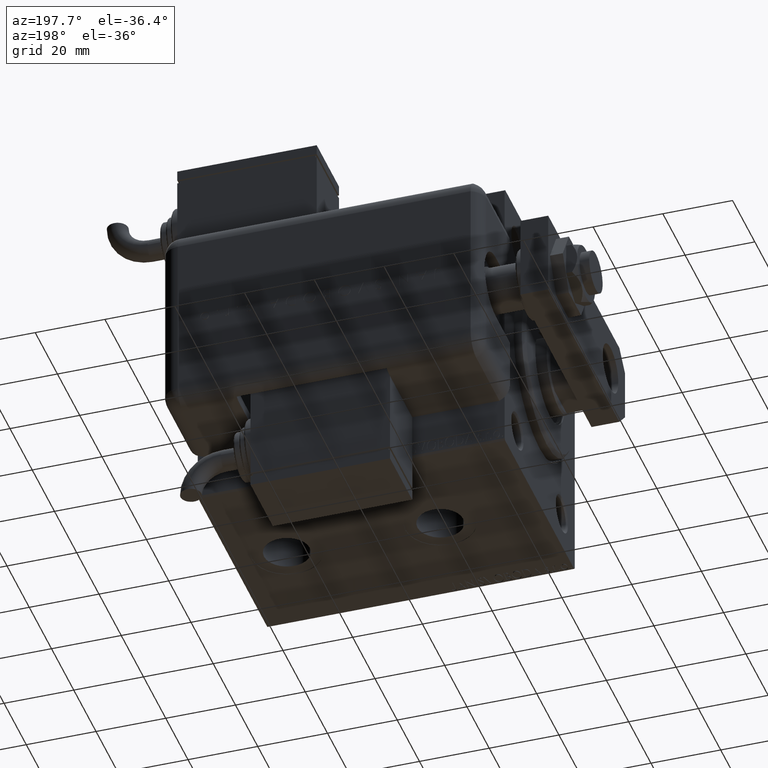
[diagram: clean part render]
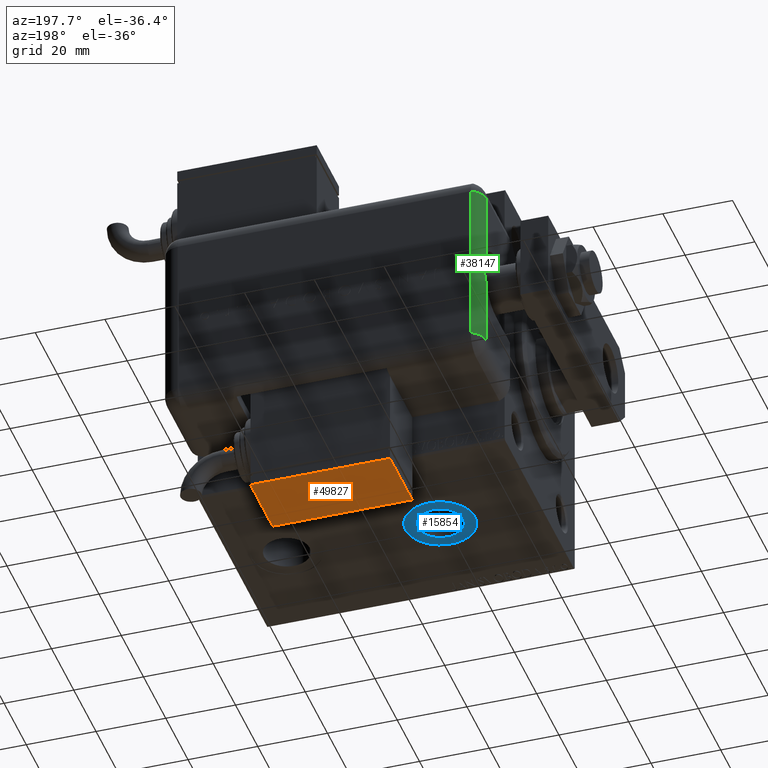
[diagram: same view with three faces highlighted in distinct colors, each labeled with its STEP entity id]
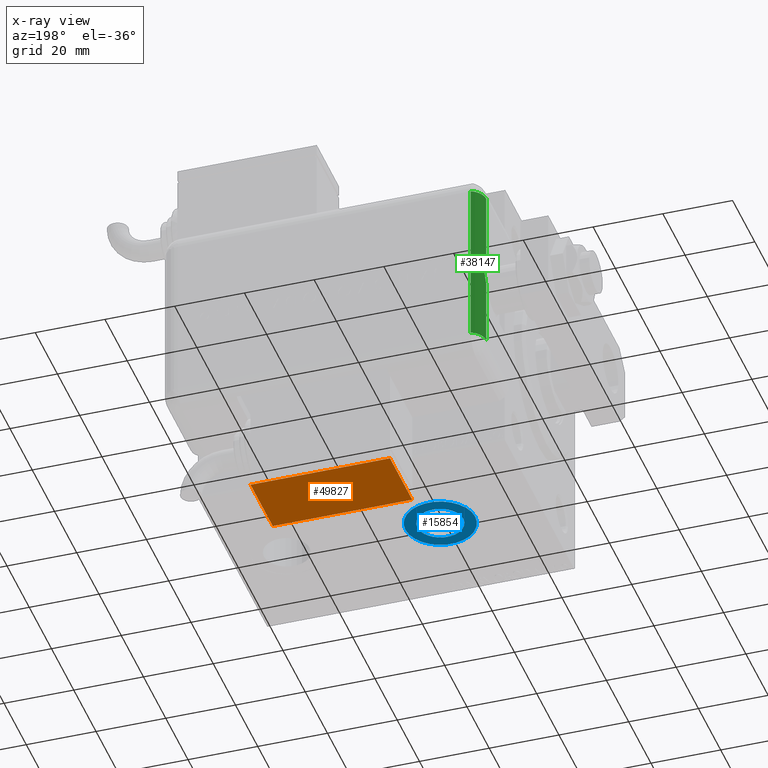
[diagram: x-ray of the same camera — body ghosted, the three highlighted faces saturated]
A machine part, auxiliary view with three faces highlighted in distinct colors.
The next image is the same camera in x-ray (body ghosted, the three faces saturated) — at least one of them is partly hidden behind the body in this view.
Their STEP definitions:

[orange] entity #49827 — the highlighted planar face has unit normal (0, 0, 1).
#3341 = FACE_OUTER_BOUND ( 'NONE', #58040, .T. ) ;
#3655 = PLANE ( 'NONE',  #5548 ) ;
#4692 = CARTESIAN_POINT ( 'NONE',  ( -19.99999999999994316, -17.49999999999996092, 10.00000000000000000 ) ) ;
#4709 = DIRECTION ( 'NONE',  ( 1.000000000000000000, 0.000000000000000000, 0.000000000000000000 ) ) ;
#4745 = CARTESIAN_POINT ( 'NONE',  ( 20.00000000000005329, -17.49999999999996092, -9.999999999999998224 ) ) ;
#4748 = VERTEX_POINT ( 'NONE', #4692 ) ;
#5548 = AXIS2_PLACEMENT_3D ( 'NONE', #55443, #18524, #8921 ) ;
#7236 = VECTOR ( 'NONE', #23961, 1000.000000000000000 ) ;
#7572 = ORIENTED_EDGE ( 'NONE', *, *, #29530, .T. ) ;
#8116 = CARTESIAN_POINT ( 'NONE',  ( 20.00000000000005329, -17.49999999999996092, 10.00000000000000000 ) ) ;
#8921 = DIRECTION ( 'NONE',  ( 0.000000000000000000, -0.000000000000000000, 1.000000000000000000 ) ) ;
#9224 = LINE ( 'NONE', #28140, #27542 ) ;
#11014 = ORIENTED_EDGE ( 'NONE', *, *, #39621, .T. ) ;
#11792 = VECTOR ( 'NONE', #58416, 1000.000000000000000 ) ;
#18524 = DIRECTION ( 'NONE',  ( 0.000000000000000000, 1.000000000000000000, 0.000000000000000000 ) ) ;
#21261 = CARTESIAN_POINT ( 'NONE',  ( 20.00000000000005329, -17.49999999999996092, -9.999999999999998224 ) ) ;
#21285 = VERTEX_POINT ( 'NONE', #8116 ) ;
#23926 = EDGE_CURVE ( 'NONE', #4748, #28014, #9224, .T. ) ;
#23961 = DIRECTION ( 'NONE',  ( 0.000000000000000000, 0.000000000000000000, 1.000000000000000000 ) ) ;
#27542 = VECTOR ( 'NONE', #51711, 1000.000000000000000 ) ;
#28014 = VERTEX_POINT ( 'NONE', #43644 ) ;
#28140 = CARTESIAN_POINT ( 'NONE',  ( -19.99999999999994316, -17.49999999999996092, -9.999999999999998224 ) ) ;
#29530 = EDGE_CURVE ( 'NONE', #21285, #4748, #49094, .T. ) ;
#32360 = LINE ( 'NONE', #4745, #7236 ) ;
#36106 = ORIENTED_EDGE ( 'NONE', *, *, #23926, .T. ) ;
#39621 = EDGE_CURVE ( 'NONE', #51640, #21285, #32360, .T. ) ;
#40092 = CARTESIAN_POINT ( 'NONE',  ( -19.99999999999994316, -17.49999999999996092, 10.00000000000000000 ) ) ;
#43644 = CARTESIAN_POINT ( 'NONE',  ( -19.99999999999994316, -17.49999999999996092, -9.999999999999998224 ) ) ;
#49094 = LINE ( 'NONE', #40092, #11792 ) ;
#49827 = ADVANCED_FACE ( 'NONE', ( #3341 ), #3655, .F. ) ;
#50925 = LINE ( 'NONE', #56209, #56737 ) ;
#51640 = VERTEX_POINT ( 'NONE', #21261 ) ;
#51711 = DIRECTION ( 'NONE',  ( -0.000000000000000000, -0.000000000000000000, -1.000000000000000000 ) ) ;
#55406 = EDGE_CURVE ( 'NONE', #28014, #51640, #50925, .T. ) ;
#55443 = CARTESIAN_POINT ( 'NONE',  ( 0.000000000000000000, -17.49999999999996092, 0.000000000000000000 ) ) ;
#56209 = CARTESIAN_POINT ( 'NONE',  ( -19.99999999999994316, -17.49999999999996092, -9.999999999999998224 ) ) ;
#56668 = ORIENTED_EDGE ( 'NONE', *, *, #55406, .T. ) ;
#56737 = VECTOR ( 'NONE', #4709, 1000.000000000000000 ) ;
#58040 = EDGE_LOOP ( 'NONE', ( #11014, #7572, #36106, #56668 ) ) ;
#58416 = DIRECTION ( 'NONE',  ( -1.000000000000000000, -0.000000000000000000, -0.000000000000000000 ) ) ;

[blue] entity #15854 — the highlighted planar face has unit normal (0, 0, -1).
#35 = AXIS2_PLACEMENT_3D ( 'NONE', #48774, #39471, #34820 ) ;
#1453 = EDGE_CURVE ( 'NONE', #37734, #5803, #21071, .T. ) ;
#3684 = FACE_BOUND ( 'NONE', #47156, .T. ) ;
#3990 = CARTESIAN_POINT ( 'NONE',  ( 0.000000000000000000, 0.000000000000000000, -42.40000000000000568 ) ) ;
#5165 = DIRECTION ( 'NONE',  ( 0.000000000000000000, 0.000000000000000000, -1.000000000000000000 ) ) ;
#5803 = VERTEX_POINT ( 'NONE', #47854 ) ;
#11199 = EDGE_LOOP ( 'NONE', ( #35149, #16722 ) ) ;
#14355 = DIRECTION ( 'NONE',  ( -1.000000000000000000, 0.000000000000000000, 0.000000000000000000 ) ) ;
#15107 = ORIENTED_EDGE ( 'NONE', *, *, #32678, .F. ) ;
#15854 = ADVANCED_FACE ( 'NONE', ( #3684, #36852 ), #46474, .T. ) ;
#16722 = ORIENTED_EDGE ( 'NONE', *, *, #51549, .T. ) ;
#18715 = EDGE_CURVE ( 'NONE', #41687, #36701, #26540, .T. ) ;
#19459 = DIRECTION ( 'NONE',  ( -1.000000000000000000, 0.000000000000000000, -0.000000000000000000 ) ) ;
#21071 = CIRCLE ( 'NONE', #59744, 6.580000000000002736 ) ;
#22648 = DIRECTION ( 'NONE',  ( 0.000000000000000000, 0.000000000000000000, -1.000000000000000000 ) ) ;
#22801 = CIRCLE ( 'NONE', #35, 6.580000000000002736 ) ;
#22852 = CIRCLE ( 'NONE', #43628, 9.999999999999998224 ) ;
#26540 = CIRCLE ( 'NONE', #44386, 9.999999999999998224 ) ;
#29569 = ORIENTED_EDGE ( 'NONE', *, *, #1453, .F. ) ;
#32264 = DIRECTION ( 'NONE',  ( -1.000000000000000000, 0.000000000000000000, 0.000000000000000000 ) ) ;
#32678 = EDGE_CURVE ( 'NONE', #5803, #37734, #22801, .T. ) ;
#34491 = DIRECTION ( 'NONE',  ( 0.000000000000000000, 0.000000000000000000, -1.000000000000000000 ) ) ;
#34820 = DIRECTION ( 'NONE',  ( -1.000000000000000000, 0.000000000000000000, 0.000000000000000000 ) ) ;
#35149 = ORIENTED_EDGE ( 'NONE', *, *, #18715, .T. ) ;
#36701 = VERTEX_POINT ( 'NONE', #38181 ) ;
#36852 = FACE_OUTER_BOUND ( 'NONE', #11199, .T. ) ;
#37734 = VERTEX_POINT ( 'NONE', #40616 ) ;
#38181 = CARTESIAN_POINT ( 'NONE',  ( 38.50000000000000000, -2.482056851579446379E-15, -42.40000000000000568 ) ) ;
#38639 = DIRECTION ( 'NONE',  ( -1.000000000000000000, 0.000000000000000000, 0.000000000000000000 ) ) ;
#39471 = DIRECTION ( 'NONE',  ( 0.000000000000000000, 0.000000000000000000, -1.000000000000000000 ) ) ;
#40445 = CARTESIAN_POINT ( 'NONE',  ( 18.50000000000000355, -3.706703650726799044E-15, -42.40000000000000568 ) ) ;
#40616 = CARTESIAN_POINT ( 'NONE',  ( 21.91999999999999815, -3.706703650726799044E-15, -42.40000000000000568 ) ) ;
#41687 = VERTEX_POINT ( 'NONE', #40445 ) ;
#42589 = CARTESIAN_POINT ( 'NONE',  ( 28.50000000000000000, -3.706703650726799044E-15, -42.40000000000000568 ) ) ;
#42693 = CARTESIAN_POINT ( 'NONE',  ( 28.50000000000000000, -3.706703650726799044E-15, -42.40000000000000568 ) ) ;
#43628 = AXIS2_PLACEMENT_3D ( 'NONE', #42693, #5165, #38639 ) ;
#44386 = AXIS2_PLACEMENT_3D ( 'NONE', #42589, #34491, #14355 ) ;
#46474 = PLANE ( 'NONE',  #52195 ) ;
#46525 = CARTESIAN_POINT ( 'NONE',  ( 28.50000000000000000, -3.706703650726799044E-15, -42.40000000000000568 ) ) ;
#47156 = EDGE_LOOP ( 'NONE', ( #29569, #15107 ) ) ;
#47854 = CARTESIAN_POINT ( 'NONE',  ( 35.07999999999999829, -2.900886056887840397E-15, -42.40000000000000568 ) ) ;
#47984 = DIRECTION ( 'NONE',  ( 0.000000000000000000, 0.000000000000000000, -1.000000000000000000 ) ) ;
#48774 = CARTESIAN_POINT ( 'NONE',  ( 28.50000000000000000, -3.706703650726799044E-15, -42.40000000000000568 ) ) ;
#51549 = EDGE_CURVE ( 'NONE', #36701, #41687, #22852, .T. ) ;
#52195 = AXIS2_PLACEMENT_3D ( 'NONE', #3990, #47984, #19459 ) ;
#59744 = AXIS2_PLACEMENT_3D ( 'NONE', #46525, #22648, #32264 ) ;

[green] entity #38147 — the highlighted cylindrical surface (edge-blend (fillet) strip) has radius 5 mm, axis along (-0, -0, -1).
#589 = VERTEX_POINT ( 'NONE', #45038 ) ;
#686 = VECTOR ( 'NONE', #59008, 1000.000000000000000 ) ;
#802 = FACE_OUTER_BOUND ( 'NONE', #50283, .T. ) ;
#1214 = ORIENTED_EDGE ( 'NONE', *, *, #6977, .F. ) ;
#1657 = CARTESIAN_POINT ( 'NONE',  ( -4.147182090953424272, 21.64034658395930322, 91.99999999999998579 ) ) ;
#2489 = CARTESIAN_POINT ( 'NONE',  ( 4.899643580265684584, 21.21742430504414045, 92.00000000000000000 ) ) ;
#6315 = CARTESIAN_POINT ( 'NONE',  ( -4.899643580265686360, 21.21742430504414045, 92.00000000000000000 ) ) ;
#6619 = CARTESIAN_POINT ( 'NONE',  ( -1.704474330344695199, 22.36301991028238589, 91.86732058242282051 ) ) ;
#6838 = CARTESIAN_POINT ( 'NONE',  ( -23.99999999999999645, 21.21742430504414401, 87.00000000000000000 ) ) ;
#6924 = CARTESIAN_POINT ( 'NONE',  ( 4.899643580265684584, 21.21742430504414045, 92.00000000000000000 ) ) ;
#6977 = EDGE_CURVE ( 'NONE', #589, #7526, #43602, .T. ) ;
#7526 = VERTEX_POINT ( 'NONE', #58280 ) ;
#10246 = CARTESIAN_POINT ( 'NONE',  ( 23.99999999999999289, 25.79999999999998295, 89.00000000000000000 ) ) ;
#10426 = DIRECTION ( 'NONE',  ( 1.000000000000000000, 0.000000000000000000, -0.000000000000000000 ) ) ;
#10914 = CARTESIAN_POINT ( 'NONE',  ( -23.99999999999999289, 21.21742430504414045, 92.00000000000000000 ) ) ;
#12100 = AXIS2_PLACEMENT_3D ( 'NONE', #29337, #32786, #24093 ) ;
#12324 = ORIENTED_EDGE ( 'NONE', *, *, #36806, .T. ) ;
#14374 = VECTOR ( 'NONE', #19134, 1000.000000000000000 ) ;
#14397 = AXIS2_PLACEMENT_3D ( 'NONE', #6838, #45589, #26065 ) ;
#15058 = CYLINDRICAL_SURFACE ( 'NONE', #12100, 5.000000000000004441 ) ;
#15894 = CARTESIAN_POINT ( 'NONE',  ( 3.358724364638090432, 21.95764543947605674, 91.94980528326458113 ) ) ;
#16525 = CARTESIAN_POINT ( 'NONE',  ( 2.120548922004970471, 22.28188573776162684, 91.88661915599942631 ) ) ;
#16999 = ORIENTED_EDGE ( 'NONE', *, *, #57498, .F. ) ;
#17191 = EDGE_CURVE ( 'NONE', #22415, #25340, #19920, .T. ) ;
#17998 = AXIS2_PLACEMENT_3D ( 'NONE', #24104, #10426, #29048 ) ;
#19134 = DIRECTION ( 'NONE',  ( -1.000000000000000000, 0.000000000000000000, -0.000000000000000000 ) ) ;
#19920 = LINE ( 'NONE', #10914, #686 ) ;
#22415 = VERTEX_POINT ( 'NONE', #38188 ) ;
#24093 = DIRECTION ( 'NONE',  ( 0.000000000000000000, 0.000000000000000000, 1.000000000000000000 ) ) ;
#24104 = CARTESIAN_POINT ( 'NONE',  ( 23.99999999999999289, 21.21742430504414401, 87.00000000000000000 ) ) ;
#24380 = EDGE_CURVE ( 'NONE', #25340, #589, #30007, .T. ) ;
#25340 = VERTEX_POINT ( 'NONE', #2489 ) ;
#25537 = CARTESIAN_POINT ( 'NONE',  ( -0.8526831356307379428, 22.47282938210785375, 91.84016084808145308 ) ) ;
#26065 = DIRECTION ( 'NONE',  ( 0.000000000000000000, 0.000000000000000000, -1.000000000000000000 ) ) ;
#27775 = ORIENTED_EDGE ( 'NONE', *, *, #49405, .T. ) ;
#28611 = CARTESIAN_POINT ( 'NONE',  ( -23.99999999999999645, 25.79999999999998295, 89.00000000000000000 ) ) ;
#29048 = DIRECTION ( 'NONE',  ( 0.000000000000000000, 0.000000000000000000, -1.000000000000000000 ) ) ;
#29267 = ORIENTED_EDGE ( 'NONE', *, *, #24380, .F. ) ;
#29337 = CARTESIAN_POINT ( 'NONE',  ( 23.99999999999999289, 21.21742430504414045, 87.00000000000000000 ) ) ;
#30007 = B_SPLINE_CURVE_WITH_KNOTS ( 'NONE', 3,
 ( #6924, #35150, #15894, #16525, #39488, #44753, #54076, #59351, #25537, #6619, #30506, #34531, #1657, #6315 ),
 .UNSPECIFIED., .F., .F.,
 ( 4, 2, 2, 2, 2, 2, 4 ),
 ( 0.000000000000000000, 0.002552242785223138820, 0.003828364177834708230, 0.005104485570446277640, 0.006380606963057847483, 0.007656728355669416460, 0.01020897114089255528 ),
 .UNSPECIFIED. ) ;
#30506 = CARTESIAN_POINT ( 'NONE',  ( -2.126976179448856197, 22.28041711506194744, 91.88693359193878507 ) ) ;
#32786 = DIRECTION ( 'NONE',  ( -1.000000000000000000, 0.000000000000000000, 0.000000000000000000 ) ) ;
#33533 = LINE ( 'NONE', #10246, #60622 ) ;
#34531 = CARTESIAN_POINT ( 'NONE',  ( -3.360120651465719810, 21.95684709623621345, 91.94990389003093867 ) ) ;
#34816 = CIRCLE ( 'NONE', #17998, 5.000000000000004441 ) ;
#35150 = CARTESIAN_POINT ( 'NONE',  ( 4.147246859832670829, 21.64031018049891841, 92.00000000000001421 ) ) ;
#36806 = EDGE_CURVE ( 'NONE', #60872, #39622, #33533, .T. ) ;
#38147 = ADVANCED_FACE ( 'NONE', ( #802 ), #15058, .T. ) ;
#38188 = CARTESIAN_POINT ( 'NONE',  ( 23.99999999999999289, 21.21742430504414045, 92.00000000000000000 ) ) ;
#39488 = CARTESIAN_POINT ( 'NONE',  ( 1.695524554190644739, 22.36448231999430547, 91.86696972652192983 ) ) ;
#39622 = VERTEX_POINT ( 'NONE', #28611 ) ;
#41139 = CIRCLE ( 'NONE', #14397, 5.000000000000004441 ) ;
#41808 = ORIENTED_EDGE ( 'NONE', *, *, #17191, .F. ) ;
#43300 = CARTESIAN_POINT ( 'NONE',  ( -23.99999999999999289, 21.21742430504414045, 92.00000000000000000 ) ) ;
#43602 = LINE ( 'NONE', #43300, #14374 ) ;
#44753 = CARTESIAN_POINT ( 'NONE',  ( 0.8473105964929726897, 22.47320809119042195, 91.84005614543823981 ) ) ;
#45038 = CARTESIAN_POINT ( 'NONE',  ( -4.899643580265686360, 21.21742430504414045, 92.00000000000000000 ) ) ;
#45589 = DIRECTION ( 'NONE',  ( 1.000000000000000000, 0.000000000000000000, 0.000000000000000000 ) ) ;
#47184 = DIRECTION ( 'NONE',  ( -1.000000000000000000, 0.000000000000000000, 0.000000000000000000 ) ) ;
#49058 = CARTESIAN_POINT ( 'NONE',  ( 23.99999999999999289, 25.79999999999998295, 89.00000000000000000 ) ) ;
#49405 = EDGE_CURVE ( 'NONE', #39622, #7526, #41139, .T. ) ;
#50283 = EDGE_LOOP ( 'NONE', ( #29267, #41808, #16999, #12324, #27775, #1214 ) ) ;
#54076 = CARTESIAN_POINT ( 'NONE',  ( 0.4227564763960088845, 22.50009467200081303, 91.83267593983390498 ) ) ;
#57498 = EDGE_CURVE ( 'NONE', #60872, #22415, #34816, .T. ) ;
#58280 = CARTESIAN_POINT ( 'NONE',  ( -23.99999999999999645, 21.21742430504414045, 92.00000000000000000 ) ) ;
#59008 = DIRECTION ( 'NONE',  ( -1.000000000000000000, 0.000000000000000000, -0.000000000000000000 ) ) ;
#59351 = CARTESIAN_POINT ( 'NONE',  ( -0.4272404019587370816, 22.49990410585946421, 91.83272651514845109 ) ) ;
#60622 = VECTOR ( 'NONE', #47184, 1000.000000000000000 ) ;
#60872 = VERTEX_POINT ( 'NONE', #49058 ) ;